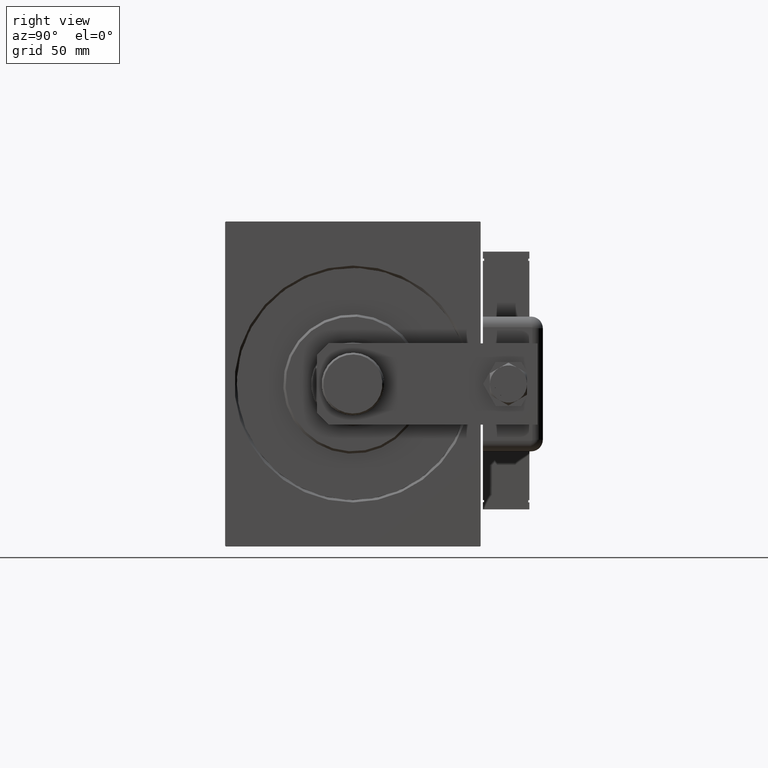
[diagram: clean part render]
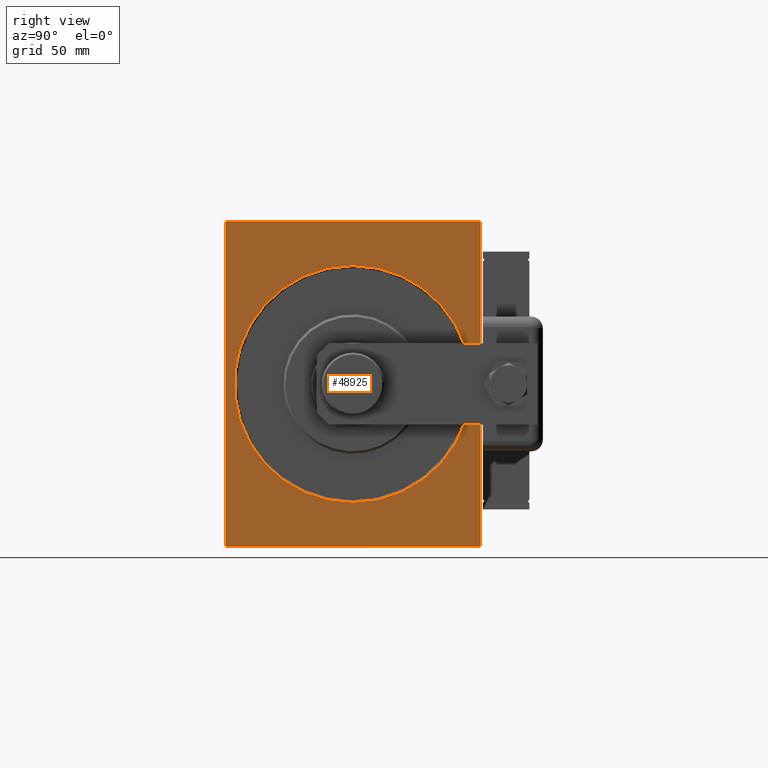
[diagram: same view with one face highlighted and labeled with its STEP entity id]
A machine part, right view. The second image highlights one B-rep face of the part: STEP entity #48925.
In plain terms, the highlighted planar face has unit normal (-1, -0, 0).
Its self-contained STEP definition (entity closure, byte-faithful):
#602 = ORIENTED_EDGE ( 'NONE', *, *, #59829, .F. ) ;
#691 = EDGE_CURVE ( 'NONE', #51702, #41481, #50204, .T. ) ;
#1207 = VERTEX_POINT ( 'NONE', #54848 ) ;
#1676 = DIRECTION ( 'NONE',  ( 0.000000000000000000, 1.000000000000000000, 0.000000000000000000 ) ) ;
#1748 = CARTESIAN_POINT ( 'NONE',  ( 0.000000000000000000, -54.99999999999999289, -69.69999999999998863 ) ) ;
#1975 = CARTESIAN_POINT ( 'NONE',  ( 0.000000000000000000, -54.99999999999999289, -70.00000000000000000 ) ) ;
#4320 = CARTESIAN_POINT ( 'NONE',  ( 0.000000000000000000, -54.69999999999997442, -70.00000000000000000 ) ) ;
#5382 = DIRECTION ( 'NONE',  ( 0.000000000000000000, 0.000000000000000000, -1.000000000000000000 ) ) ;
#5559 = VERTEX_POINT ( 'NONE', #21565 ) ;
#6923 = AXIS2_PLACEMENT_3D ( 'NONE', #13172, #30795, #50179 ) ;
#7249 = AXIS2_PLACEMENT_3D ( 'NONE', #21613, #22800, #49213 ) ;
#7268 = ORIENTED_EDGE ( 'NONE', *, *, #15096, .T. ) ;
#8874 = VECTOR ( 'NONE', #12000, 1000.000000000000114 ) ;
#9155 = EDGE_CURVE ( 'NONE', #17034, #5559, #22765, .T. ) ;
#9410 = ORIENTED_EDGE ( 'NONE', *, *, #48061, .T. ) ;
#9937 = CARTESIAN_POINT ( 'NONE',  ( 0.000000000000000000, 0.000000000000000000, 0.000000000000000000 ) ) ;
#10073 = ORIENTED_EDGE ( 'NONE', *, *, #41260, .T. ) ;
#10777 = ORIENTED_EDGE ( 'NONE', *, *, #691, .T. ) ;
#12000 = DIRECTION ( 'NONE',  ( -0.000000000000000000, 0.7071067811865474617, 0.7071067811865474617 ) ) ;
#13172 = CARTESIAN_POINT ( 'NONE',  ( 0.000000000000000000, 0.000000000000000000, 0.000000000000000000 ) ) ;
#13654 = CARTESIAN_POINT ( 'NONE',  ( 0.000000000000000000, 55.00000000000002132, -70.00000000000000000 ) ) ;
#13826 = DIRECTION ( 'NONE',  ( 0.000000000000000000, -1.000000000000000000, 0.000000000000000000 ) ) ;
#14658 = CIRCLE ( 'NONE', #6923, 50.99999999999993605 ) ;
#15096 = EDGE_CURVE ( 'NONE', #1207, #24877, #14658, .T. ) ;
#15928 = CARTESIAN_POINT ( 'NONE',  ( 0.000000000000000000, 55.00000000000002132, -69.69999999999998863 ) ) ;
#17034 = VERTEX_POINT ( 'NONE', #15928 ) ;
#19899 = VECTOR ( 'NONE', #22617, 1000.000000000000114 ) ;
#21565 = CARTESIAN_POINT ( 'NONE',  ( 0.000000000000000000, 54.99999999999999289, 69.69999999999998863 ) ) ;
#21613 = CARTESIAN_POINT ( 'NONE',  ( 0.000000000000000000, 0.000000000000000000, 0.000000000000000000 ) ) ;
#22353 = EDGE_LOOP ( 'NONE', ( #10073, #7268 ) ) ;
#22607 = CARTESIAN_POINT ( 'NONE',  ( 0.000000000000000000, -54.99999999999999289, 69.69999999999998863 ) ) ;
#22617 = DIRECTION ( 'NONE',  ( -0.000000000000000000, -0.7071067811865474617, 0.7071067811865474617 ) ) ;
#22765 = LINE ( 'NONE', #13654, #37812 ) ;
#22800 = DIRECTION ( 'NONE',  ( 1.000000000000000000, 0.000000000000000000, 0.000000000000000000 ) ) ;
#22937 = CARTESIAN_POINT ( 'NONE',  ( 0.000000000000000000, 54.99999999999999289, 70.00000000000000000 ) ) ;
#23875 = CARTESIAN_POINT ( 'NONE',  ( 0.000000000000000000, -54.99999999999999289, 69.69999999999998863 ) ) ;
#23983 = CARTESIAN_POINT ( 'NONE',  ( 0.000000000000000000, 0.000000000000000000, 50.99999999999993605 ) ) ;
#24570 = EDGE_LOOP ( 'NONE', ( #51543, #9410, #42386, #56836, #602, #53308, #44591, #10777 ) ) ;
#24877 = VERTEX_POINT ( 'NONE', #23983 ) ;
#25947 = EDGE_CURVE ( 'NONE', #30655, #59626, #26279, .T. ) ;
#26279 = LINE ( 'NONE', #59034, #19899 ) ;
#27101 = CARTESIAN_POINT ( 'NONE',  ( 0.000000000000000000, 54.69999999999997442, 70.00000000000000000 ) ) ;
#27787 = LINE ( 'NONE', #22937, #45240 ) ;
#27949 = VERTEX_POINT ( 'NONE', #30325 ) ;
#28194 = VECTOR ( 'NONE', #1676, 1000.000000000000000 ) ;
#28462 = CARTESIAN_POINT ( 'NONE',  ( 0.000000000000000000, -54.99999999999999289, 70.00000000000000000 ) ) ;
#29891 = VECTOR ( 'NONE', #33900, 1000.000000000000000 ) ;
#30325 = CARTESIAN_POINT ( 'NONE',  ( 0.000000000000000000, 54.69999999999999574, -70.00000000000000000 ) ) ;
#30494 = LINE ( 'NONE', #35955, #36660 ) ;
#30655 = VERTEX_POINT ( 'NONE', #4320 ) ;
#30795 = DIRECTION ( 'NONE',  ( 1.000000000000000000, 0.000000000000000000, 0.000000000000000000 ) ) ;
#33442 = CIRCLE ( 'NONE', #7249, 50.99999999999993605 ) ;
#33785 = AXIS2_PLACEMENT_3D ( 'NONE', #9937, #46931, #5382 ) ;
#33900 = DIRECTION ( 'NONE',  ( 0.000000000000000000, 0.000000000000000000, -1.000000000000000000 ) ) ;
#35352 = DIRECTION ( 'NONE',  ( -0.000000000000000000, 0.7071067811865474617, -0.7071067811865474617 ) ) ;
#35955 = CARTESIAN_POINT ( 'NONE',  ( 0.000000000000000000, 54.69999999999997442, 70.00000000000000000 ) ) ;
#36660 = VECTOR ( 'NONE', #35352, 1000.000000000000114 ) ;
#37812 = VECTOR ( 'NONE', #41279, 1000.000000000000000 ) ;
#38104 = LINE ( 'NONE', #1975, #28194 ) ;
#38247 = CARTESIAN_POINT ( 'NONE',  ( 0.000000000000000000, -54.69999999999997442, 70.00000000000000000 ) ) ;
#38449 = FACE_OUTER_BOUND ( 'NONE', #24570, .T. ) ;
#38464 = LINE ( 'NONE', #28462, #29891 ) ;
#39552 = EDGE_CURVE ( 'NONE', #17034, #27949, #49532, .T. ) ;
#41031 = DIRECTION ( 'NONE',  ( 0.000000000000000000, -0.7071067811865474617, -0.7071067811865474617 ) ) ;
#41260 = EDGE_CURVE ( 'NONE', #24877, #1207, #33442, .T. ) ;
#41279 = DIRECTION ( 'NONE',  ( 0.000000000000000000, -1.982541115402065110E-16, 1.000000000000000000 ) ) ;
#41481 = VERTEX_POINT ( 'NONE', #38247 ) ;
#42247 = VECTOR ( 'NONE', #41031, 1000.000000000000114 ) ;
#42386 = ORIENTED_EDGE ( 'NONE', *, *, #9155, .F. ) ;
#42605 = VERTEX_POINT ( 'NONE', #27101 ) ;
#42990 = FACE_BOUND ( 'NONE', #22353, .T. ) ;
#44591 = ORIENTED_EDGE ( 'NONE', *, *, #49829, .F. ) ;
#44817 = EDGE_CURVE ( 'NONE', #42605, #41481, #27787, .T. ) ;
#45240 = VECTOR ( 'NONE', #13826, 1000.000000000000000 ) ;
#46931 = DIRECTION ( 'NONE',  ( 1.000000000000000000, 0.000000000000000000, 0.000000000000000000 ) ) ;
#48061 = EDGE_CURVE ( 'NONE', #42605, #5559, #30494, .T. ) ;
#48925 = ADVANCED_FACE ( 'NONE', ( #42990, #38449 ), #51489, .F. ) ;
#49213 = DIRECTION ( 'NONE',  ( 0.000000000000000000, 0.000000000000000000, -1.000000000000000000 ) ) ;
#49532 = LINE ( 'NONE', #59536, #42247 ) ;
#49829 = EDGE_CURVE ( 'NONE', #51702, #59626, #38464, .T. ) ;
#50179 = DIRECTION ( 'NONE',  ( 0.000000000000000000, 0.000000000000000000, -1.000000000000000000 ) ) ;
#50204 = LINE ( 'NONE', #22607, #8874 ) ;
#51489 = PLANE ( 'NONE',  #33785 ) ;
#51543 = ORIENTED_EDGE ( 'NONE', *, *, #44817, .F. ) ;
#51702 = VERTEX_POINT ( 'NONE', #23875 ) ;
#53308 = ORIENTED_EDGE ( 'NONE', *, *, #25947, .T. ) ;
#54848 = CARTESIAN_POINT ( 'NONE',  ( 0.000000000000000000, 6.245698675651492556E-15, -50.99999999999993605 ) ) ;
#56836 = ORIENTED_EDGE ( 'NONE', *, *, #39552, .T. ) ;
#59034 = CARTESIAN_POINT ( 'NONE',  ( 0.000000000000000000, -54.69999999999997442, -70.00000000000000000 ) ) ;
#59536 = CARTESIAN_POINT ( 'NONE',  ( 0.000000000000000000, 55.00000000000002132, -69.69999999999998863 ) ) ;
#59626 = VERTEX_POINT ( 'NONE', #1748 ) ;
#59829 = EDGE_CURVE ( 'NONE', #30655, #27949, #38104, .T. ) ;